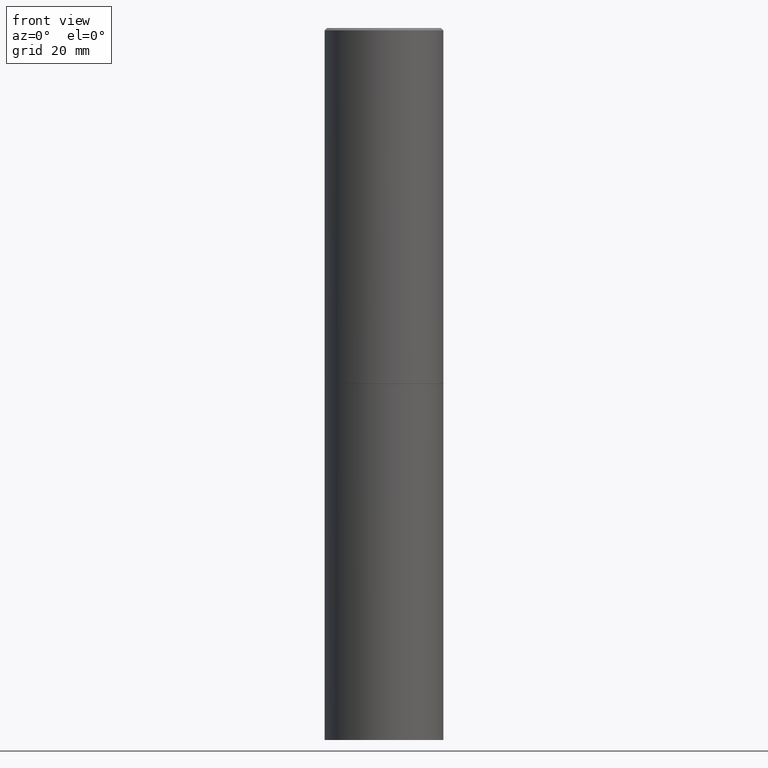
[diagram: clean part render]
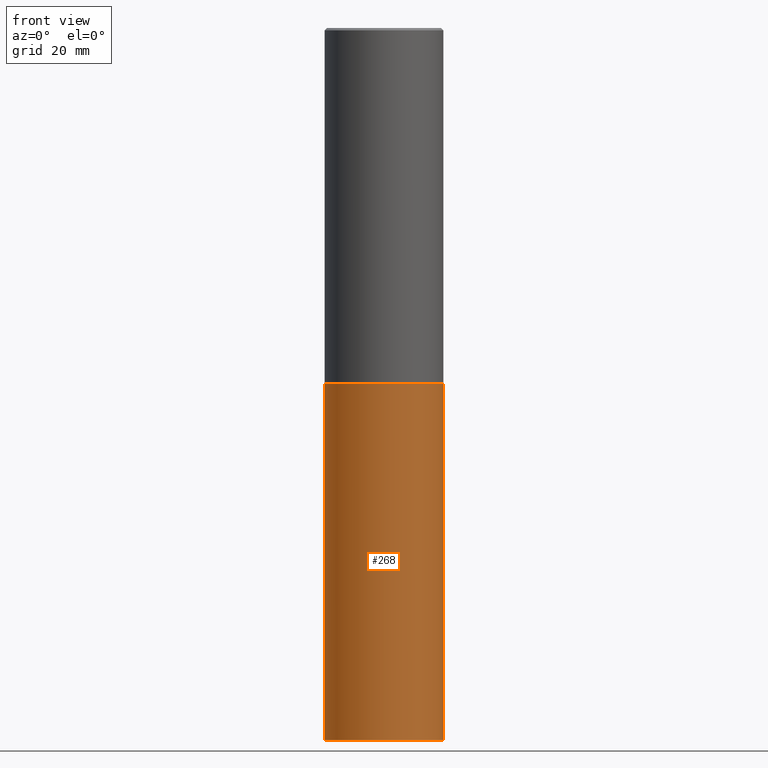
[diagram: same view with one face highlighted and labeled with its STEP entity id]
A machine part, front view. The second image highlights one B-rep face of the part: STEP entity #268.
In plain terms, the highlighted cylindrical surface (partial cylindrical patch) has radius 12.5006 mm, axis along (-0, 0, 1).
Its self-contained STEP definition (entity closure, byte-faithful):
#58 = FACE_OUTER_BOUND ( 'NONE', #224, .T. ) ;
#59 = CIRCLE ( 'NONE', #77, 0.4921499999999999764 ) ;
#61 = EDGE_CURVE ( 'NONE', #189, #104, #181, .T. ) ;
#63 = AXIS2_PLACEMENT_3D ( 'NONE', #346, #176, #205 ) ;
#77 = AXIS2_PLACEMENT_3D ( 'NONE', #238, #119, #242 ) ;
#82 = DIRECTION ( 'NONE',  ( -2.445468806185136597E-29, 3.491481338843145583E-15, 1.000000000000000000 ) ) ;
#84 = EDGE_CURVE ( 'NONE', #360, #189, #232, .T. ) ;
#86 = DIRECTION ( 'NONE',  ( 1.000000000000000000, -6.982962677686265922E-15, 4.876176775795935793E-29 ) ) ;
#90 = CARTESIAN_POINT ( 'NONE',  ( -0.4921499999999999764, -1.196718392382684217E-14, -2.952700000000000102 ) ) ;
#95 = AXIS2_PLACEMENT_3D ( 'NONE', #341, #82, #86 ) ;
#104 = VERTEX_POINT ( 'NONE', #271 ) ;
#109 = ORIENTED_EDGE ( 'NONE', *, *, #226, .F. ) ;
#119 = DIRECTION ( 'NONE',  ( -2.445468806185136597E-29, 3.491481338843145583E-15, 1.000000000000000000 ) ) ;
#129 = DIRECTION ( 'NONE',  ( -2.445468806185136877E-29, 3.491481338843145188E-15, 1.000000000000000000 ) ) ;
#143 = VERTEX_POINT ( 'NONE', #90 ) ;
#157 = CARTESIAN_POINT ( 'NONE',  ( 0.4921499999999999764, -3.436665081823295777E-15, 2.399810400207969603E-29 ) ) ;
#160 = LINE ( 'NONE', #313, #193 ) ;
#176 = DIRECTION ( 'NONE',  ( -2.445468806185136597E-29, 3.491481338843145583E-15, 1.000000000000000000 ) ) ;
#179 = CARTESIAN_POINT ( 'NONE',  ( -0.4921499999999999764, -1.196718392382684217E-14, -5.905499999999999972 ) ) ;
#181 = LINE ( 'NONE', #157, #188 ) ;
#183 = ORIENTED_EDGE ( 'NONE', *, *, #84, .T. ) ;
#188 = VECTOR ( 'NONE', #129, 39.37007874015748143 ) ;
#189 = VERTEX_POINT ( 'NONE', #291 ) ;
#193 = VECTOR ( 'NONE', #309, 39.37007874015748143 ) ;
#197 = CYLINDRICAL_SURFACE ( 'NONE', #95, 0.4921499999999999764 ) ;
#205 = DIRECTION ( 'NONE',  ( 1.000000000000000000, -6.982962677686265922E-15, 0.000000000000000000 ) ) ;
#212 = ORIENTED_EDGE ( 'NONE', *, *, #221, .F. ) ;
#221 = EDGE_CURVE ( 'NONE', #360, #143, #160, .T. ) ;
#224 = EDGE_LOOP ( 'NONE', ( #212, #183, #312, #109 ) ) ;
#226 = EDGE_CURVE ( 'NONE', #143, #104, #59, .T. ) ;
#232 = CIRCLE ( 'NONE', #63, 0.4921499999999999764 ) ;
#238 = CARTESIAN_POINT ( 'NONE',  ( 7.220735744022852519E-29, -1.030929694920215502E-14, -2.952700000000000102 ) ) ;
#242 = DIRECTION ( 'NONE',  ( 1.000000000000000000, -6.982962677686265922E-15, 0.000000000000000000 ) ) ;
#268 = ADVANCED_FACE ( 'NONE', ( #58 ), #197, .T. ) ;
#271 = CARTESIAN_POINT ( 'NONE',  ( 0.4921499999999999764, -1.374596203102545079E-14, -2.952700000000000102 ) ) ;
#291 = CARTESIAN_POINT ( 'NONE',  ( 0.4921499999999999764, -2.405560812836148932E-14, -5.905499999999999972 ) ) ;
#309 = DIRECTION ( 'NONE',  ( -2.445468806185136877E-29, 3.491481338843145188E-15, 1.000000000000000000 ) ) ;
#312 = ORIENTED_EDGE ( 'NONE', *, *, #61, .T. ) ;
#313 = CARTESIAN_POINT ( 'NONE',  ( -0.4921499999999999764, 3.496936074043332897E-15, -2.420853904668951509E-29 ) ) ;
#341 = CARTESIAN_POINT ( 'NONE',  ( 0.000000000000000000, 0.000000000000000000, 0.000000000000000000 ) ) ;
#346 = CARTESIAN_POINT ( 'NONE',  ( 1.444171603492632270E-28, -2.061894304653819197E-14, -5.905499999999999972 ) ) ;
#360 = VERTEX_POINT ( 'NONE', #179 ) ;